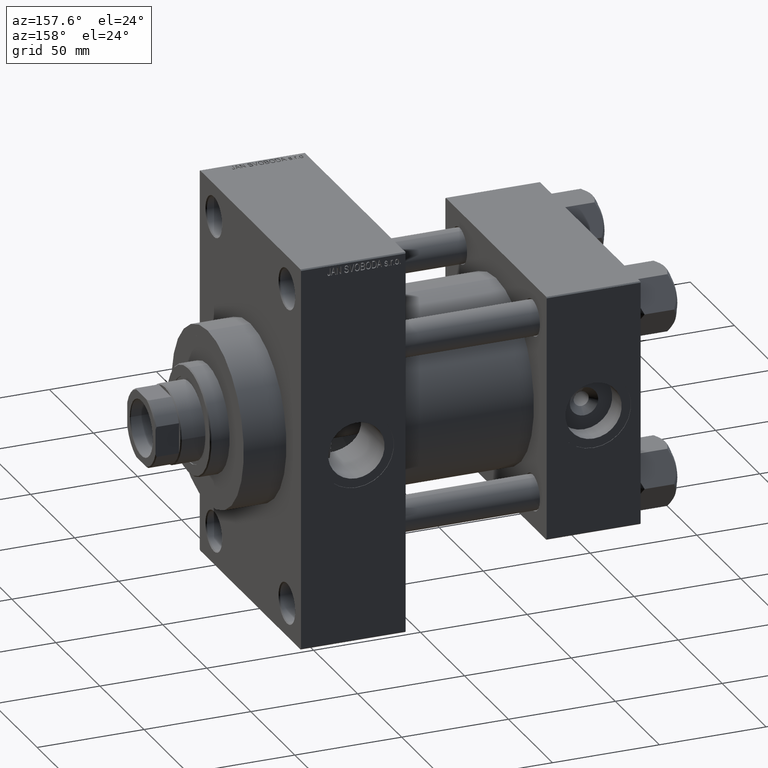
[diagram: clean part render]
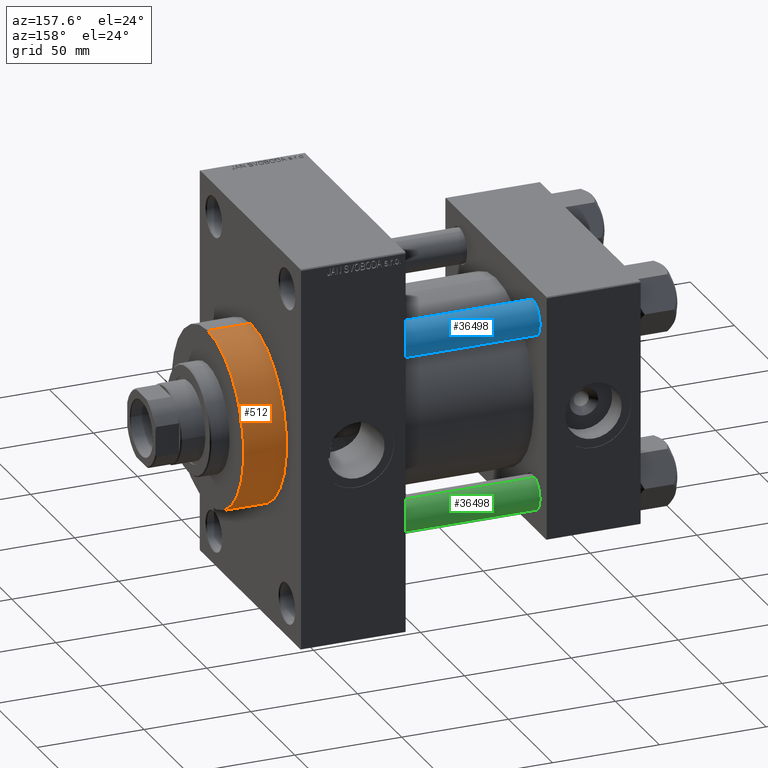
[diagram: same view with three faces highlighted in distinct colors, each labeled with its STEP entity id]
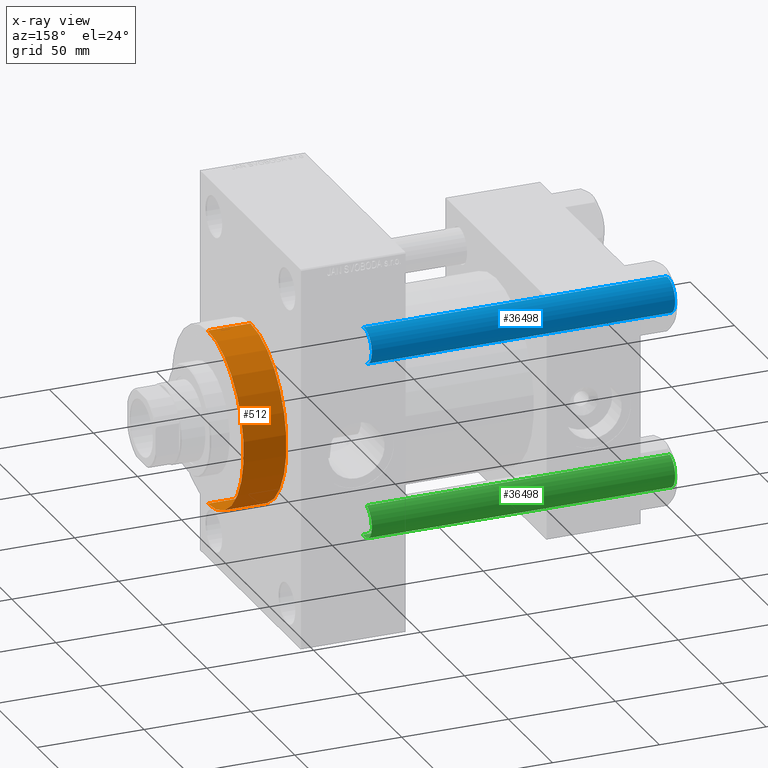
[diagram: x-ray of the same camera — body ghosted, the three highlighted faces saturated]
A machine part, auxiliary view with three faces highlighted in distinct colors.
The next image is the same camera in x-ray (body ghosted, the three faces saturated) — at least one of them is partly hidden behind the body in this view.
Their STEP definitions:

[orange] entity #512 — the highlighted cylindrical surface (partial cylindrical patch) has radius 41 mm, axis along (-1, -0, -0).
#512 = ADVANCED_FACE ( 'NONE', ( #39330 ), #34333, .T. ) ;
#1449 = VERTEX_POINT ( 'NONE', #7816 ) ;
#2405 = LINE ( 'NONE', #33408, #5710 ) ;
#3568 = DIRECTION ( 'NONE',  ( 1.000000000000000000, 0.000000000000000000, 0.000000000000000000 ) ) ;
#5710 = VECTOR ( 'NONE', #44921, 1000.000000000000000 ) ;
#7816 = CARTESIAN_POINT ( 'NONE',  ( 179.0000000000000000, 0.000000000000000000, 41.00000000000000000 ) ) ;
#8797 = AXIS2_PLACEMENT_3D ( 'NONE', #36555, #41033, #40556 ) ;
#10814 = DIRECTION ( 'NONE',  ( 0.000000000000000000, 0.000000000000000000, -1.000000000000000000 ) ) ;
#11552 = DIRECTION ( 'NONE',  ( 0.000000000000000000, 0.000000000000000000, 1.000000000000000000 ) ) ;
#12642 = DIRECTION ( 'NONE',  ( -1.000000000000000000, -0.000000000000000000, -0.000000000000000000 ) ) ;
#14748 = EDGE_LOOP ( 'NONE', ( #17280, #31650, #42549, #27786 ) ) ;
#17280 = ORIENTED_EDGE ( 'NONE', *, *, #22684, .F. ) ;
#19292 = CARTESIAN_POINT ( 'NONE',  ( 179.0000000000000000, 0.000000000000000000, 0.000000000000000000 ) ) ;
#19873 = CIRCLE ( 'NONE', #49415, 41.00000000000000000 ) ;
#21249 = VERTEX_POINT ( 'NONE', #35680 ) ;
#22684 = EDGE_CURVE ( 'NONE', #21249, #1449, #37555, .T. ) ;
#23756 = EDGE_CURVE ( 'NONE', #48495, #26451, #19873, .T. ) ;
#26451 = VERTEX_POINT ( 'NONE', #42379 ) ;
#27786 = ORIENTED_EDGE ( 'NONE', *, *, #33038, .F. ) ;
#27907 = LINE ( 'NONE', #39668, #29726 ) ;
#29726 = VECTOR ( 'NONE', #12642, 1000.000000000000000 ) ;
#30076 = CARTESIAN_POINT ( 'NONE',  ( 159.0000000000000000, 0.000000000000000000, 0.000000000000000000 ) ) ;
#30569 = DIRECTION ( 'NONE',  ( -1.000000000000000000, -0.000000000000000000, -0.000000000000000000 ) ) ;
#31650 = ORIENTED_EDGE ( 'NONE', *, *, #31904, .T. ) ;
#31904 = EDGE_CURVE ( 'NONE', #21249, #48495, #27907, .T. ) ;
#33038 = EDGE_CURVE ( 'NONE', #1449, #26451, #2405, .T. ) ;
#33408 = CARTESIAN_POINT ( 'NONE',  ( 179.0000000000000000, 0.000000000000000000, 41.00000000000000000 ) ) ;
#34333 = CYLINDRICAL_SURFACE ( 'NONE', #40225, 41.00000000000000000 ) ;
#35680 = CARTESIAN_POINT ( 'NONE',  ( 179.0000000000000000, 5.021051876504148963E-15, -41.00000000000000000 ) ) ;
#36555 = CARTESIAN_POINT ( 'NONE',  ( 179.0000000000000000, 0.000000000000000000, 0.000000000000000000 ) ) ;
#37555 = CIRCLE ( 'NONE', #8797, 41.00000000000000000 ) ;
#38099 = CARTESIAN_POINT ( 'NONE',  ( 159.0000000000000000, 5.021051876504148963E-15, -41.00000000000000000 ) ) ;
#39330 = FACE_OUTER_BOUND ( 'NONE', #14748, .T. ) ;
#39668 = CARTESIAN_POINT ( 'NONE',  ( 179.0000000000000000, 5.021051876504148963E-15, -41.00000000000000000 ) ) ;
#40225 = AXIS2_PLACEMENT_3D ( 'NONE', #19292, #30569, #11552 ) ;
#40556 = DIRECTION ( 'NONE',  ( 0.000000000000000000, 0.000000000000000000, -1.000000000000000000 ) ) ;
#41033 = DIRECTION ( 'NONE',  ( 1.000000000000000000, 0.000000000000000000, 0.000000000000000000 ) ) ;
#42379 = CARTESIAN_POINT ( 'NONE',  ( 159.0000000000000000, 0.000000000000000000, 41.00000000000000000 ) ) ;
#42549 = ORIENTED_EDGE ( 'NONE', *, *, #23756, .T. ) ;
#44921 = DIRECTION ( 'NONE',  ( -1.000000000000000000, -0.000000000000000000, -0.000000000000000000 ) ) ;
#48495 = VERTEX_POINT ( 'NONE', #38099 ) ;
#49415 = AXIS2_PLACEMENT_3D ( 'NONE', #30076, #3568, #10814 ) ;

[blue] entity #36498 — the highlighted cylindrical surface (edge-blend (fillet) strip) has radius 8 mm, axis along (-1, -0, 0).
#181 = EDGE_LOOP ( 'NONE', ( #32670, #28895, #36642, #45419 ) ) ;
#1001 = AXIS2_PLACEMENT_3D ( 'NONE', #33532, #8172, #42968 ) ;
#4965 = VECTOR ( 'NONE', #45012, 1000.000000000000000 ) ;
#8172 = DIRECTION ( 'NONE',  ( -0.000000000000000000, -0.000000000000000000, 1.000000000000000000 ) ) ;
#8624 = CARTESIAN_POINT ( 'NONE',  ( 0.000000000000000000, 0.000000000000000000, 143.0000000000000000 ) ) ;
#10162 = AXIS2_PLACEMENT_3D ( 'NONE', #30869, #11850, #38392 ) ;
#11850 = DIRECTION ( 'NONE',  ( 0.000000000000000000, 0.000000000000000000, -1.000000000000000000 ) ) ;
#12996 = AXIS2_PLACEMENT_3D ( 'NONE', #8624, #19875, #46166 ) ;
#13984 = CARTESIAN_POINT ( 'NONE',  ( -8.000000000000000000, 0.000000000000000000, 143.0000000000000000 ) ) ;
#14177 = CARTESIAN_POINT ( 'NONE',  ( 8.000000000000000000, 9.797174393178825657E-16, 142.4999999999999716 ) ) ;
#15130 = VERTEX_POINT ( 'NONE', #16285 ) ;
#16285 = CARTESIAN_POINT ( 'NONE',  ( -8.000000000000000000, 0.000000000000000000, 142.4999999999999716 ) ) ;
#16307 = EDGE_CURVE ( 'NONE', #15130, #28802, #38927, .T. ) ;
#16643 = VERTEX_POINT ( 'NONE', #31558 ) ;
#17516 = VECTOR ( 'NONE', #30977, 1000.000000000000000 ) ;
#17976 = LINE ( 'NONE', #13984, #4965 ) ;
#19707 = LINE ( 'NONE', #27729, #17516 ) ;
#19875 = DIRECTION ( 'NONE',  ( -0.000000000000000000, -0.000000000000000000, -1.000000000000000000 ) ) ;
#19979 = EDGE_CURVE ( 'NONE', #28802, #16643, #19707, .T. ) ;
#20056 = CARTESIAN_POINT ( 'NONE',  ( -8.000000000000000000, 0.000000000000000000, 0.4999999999999726885 ) ) ;
#26900 = CYLINDRICAL_SURFACE ( 'NONE', #12996, 8.000000000000000000 ) ;
#27344 = CIRCLE ( 'NONE', #1001, 8.000000000000000000 ) ;
#27395 = FACE_OUTER_BOUND ( 'NONE', #181, .T. ) ;
#27729 = CARTESIAN_POINT ( 'NONE',  ( 8.000000000000000000, 9.797174393178825657E-16, 143.0000000000000000 ) ) ;
#28802 = VERTEX_POINT ( 'NONE', #14177 ) ;
#28895 = ORIENTED_EDGE ( 'NONE', *, *, #19979, .T. ) ;
#30869 = CARTESIAN_POINT ( 'NONE',  ( 0.000000000000000000, 0.000000000000000000, 142.4999999999999716 ) ) ;
#30977 = DIRECTION ( 'NONE',  ( -0.000000000000000000, -0.000000000000000000, -1.000000000000000000 ) ) ;
#31558 = CARTESIAN_POINT ( 'NONE',  ( 8.000000000000000000, 9.797174393178825657E-16, 0.4999999999999726885 ) ) ;
#31564 = EDGE_CURVE ( 'NONE', #15130, #39374, #17976, .T. ) ;
#32670 = ORIENTED_EDGE ( 'NONE', *, *, #16307, .T. ) ;
#33532 = CARTESIAN_POINT ( 'NONE',  ( 0.000000000000000000, 0.000000000000000000, 0.4999999999999726885 ) ) ;
#35482 = EDGE_CURVE ( 'NONE', #16643, #39374, #27344, .T. ) ;
#36498 = ADVANCED_FACE ( 'NONE', ( #27395 ), #26900, .T. ) ;
#36642 = ORIENTED_EDGE ( 'NONE', *, *, #35482, .T. ) ;
#38392 = DIRECTION ( 'NONE',  ( 1.000000000000000000, 0.000000000000000000, 0.000000000000000000 ) ) ;
#38927 = CIRCLE ( 'NONE', #10162, 8.000000000000000000 ) ;
#39374 = VERTEX_POINT ( 'NONE', #20056 ) ;
#42968 = DIRECTION ( 'NONE',  ( 1.000000000000000000, 0.000000000000000000, 0.000000000000000000 ) ) ;
#45012 = DIRECTION ( 'NONE',  ( -0.000000000000000000, -0.000000000000000000, -1.000000000000000000 ) ) ;
#45419 = ORIENTED_EDGE ( 'NONE', *, *, #31564, .F. ) ;
#46166 = DIRECTION ( 'NONE',  ( -1.000000000000000000, 0.000000000000000000, 0.000000000000000000 ) ) ;

[green] entity #36498 — the highlighted cylindrical surface (edge-blend (fillet) strip) has radius 8 mm, axis along (1, -0, 0).
#181 = EDGE_LOOP ( 'NONE', ( #32670, #28895, #36642, #45419 ) ) ;
#1001 = AXIS2_PLACEMENT_3D ( 'NONE', #33532, #8172, #42968 ) ;
#4965 = VECTOR ( 'NONE', #45012, 1000.000000000000000 ) ;
#8172 = DIRECTION ( 'NONE',  ( -0.000000000000000000, -0.000000000000000000, 1.000000000000000000 ) ) ;
#8624 = CARTESIAN_POINT ( 'NONE',  ( 0.000000000000000000, 0.000000000000000000, 143.0000000000000000 ) ) ;
#10162 = AXIS2_PLACEMENT_3D ( 'NONE', #30869, #11850, #38392 ) ;
#11850 = DIRECTION ( 'NONE',  ( 0.000000000000000000, 0.000000000000000000, -1.000000000000000000 ) ) ;
#12996 = AXIS2_PLACEMENT_3D ( 'NONE', #8624, #19875, #46166 ) ;
#13984 = CARTESIAN_POINT ( 'NONE',  ( -8.000000000000000000, 0.000000000000000000, 143.0000000000000000 ) ) ;
#14177 = CARTESIAN_POINT ( 'NONE',  ( 8.000000000000000000, 9.797174393178825657E-16, 142.4999999999999716 ) ) ;
#15130 = VERTEX_POINT ( 'NONE', #16285 ) ;
#16285 = CARTESIAN_POINT ( 'NONE',  ( -8.000000000000000000, 0.000000000000000000, 142.4999999999999716 ) ) ;
#16307 = EDGE_CURVE ( 'NONE', #15130, #28802, #38927, .T. ) ;
#16643 = VERTEX_POINT ( 'NONE', #31558 ) ;
#17516 = VECTOR ( 'NONE', #30977, 1000.000000000000000 ) ;
#17976 = LINE ( 'NONE', #13984, #4965 ) ;
#19707 = LINE ( 'NONE', #27729, #17516 ) ;
#19875 = DIRECTION ( 'NONE',  ( -0.000000000000000000, -0.000000000000000000, -1.000000000000000000 ) ) ;
#19979 = EDGE_CURVE ( 'NONE', #28802, #16643, #19707, .T. ) ;
#20056 = CARTESIAN_POINT ( 'NONE',  ( -8.000000000000000000, 0.000000000000000000, 0.4999999999999726885 ) ) ;
#26900 = CYLINDRICAL_SURFACE ( 'NONE', #12996, 8.000000000000000000 ) ;
#27344 = CIRCLE ( 'NONE', #1001, 8.000000000000000000 ) ;
#27395 = FACE_OUTER_BOUND ( 'NONE', #181, .T. ) ;
#27729 = CARTESIAN_POINT ( 'NONE',  ( 8.000000000000000000, 9.797174393178825657E-16, 143.0000000000000000 ) ) ;
#28802 = VERTEX_POINT ( 'NONE', #14177 ) ;
#28895 = ORIENTED_EDGE ( 'NONE', *, *, #19979, .T. ) ;
#30869 = CARTESIAN_POINT ( 'NONE',  ( 0.000000000000000000, 0.000000000000000000, 142.4999999999999716 ) ) ;
#30977 = DIRECTION ( 'NONE',  ( -0.000000000000000000, -0.000000000000000000, -1.000000000000000000 ) ) ;
#31558 = CARTESIAN_POINT ( 'NONE',  ( 8.000000000000000000, 9.797174393178825657E-16, 0.4999999999999726885 ) ) ;
#31564 = EDGE_CURVE ( 'NONE', #15130, #39374, #17976, .T. ) ;
#32670 = ORIENTED_EDGE ( 'NONE', *, *, #16307, .T. ) ;
#33532 = CARTESIAN_POINT ( 'NONE',  ( 0.000000000000000000, 0.000000000000000000, 0.4999999999999726885 ) ) ;
#35482 = EDGE_CURVE ( 'NONE', #16643, #39374, #27344, .T. ) ;
#36498 = ADVANCED_FACE ( 'NONE', ( #27395 ), #26900, .T. ) ;
#36642 = ORIENTED_EDGE ( 'NONE', *, *, #35482, .T. ) ;
#38392 = DIRECTION ( 'NONE',  ( 1.000000000000000000, 0.000000000000000000, 0.000000000000000000 ) ) ;
#38927 = CIRCLE ( 'NONE', #10162, 8.000000000000000000 ) ;
#39374 = VERTEX_POINT ( 'NONE', #20056 ) ;
#42968 = DIRECTION ( 'NONE',  ( 1.000000000000000000, 0.000000000000000000, 0.000000000000000000 ) ) ;
#45012 = DIRECTION ( 'NONE',  ( -0.000000000000000000, -0.000000000000000000, -1.000000000000000000 ) ) ;
#45419 = ORIENTED_EDGE ( 'NONE', *, *, #31564, .F. ) ;
#46166 = DIRECTION ( 'NONE',  ( -1.000000000000000000, 0.000000000000000000, 0.000000000000000000 ) ) ;